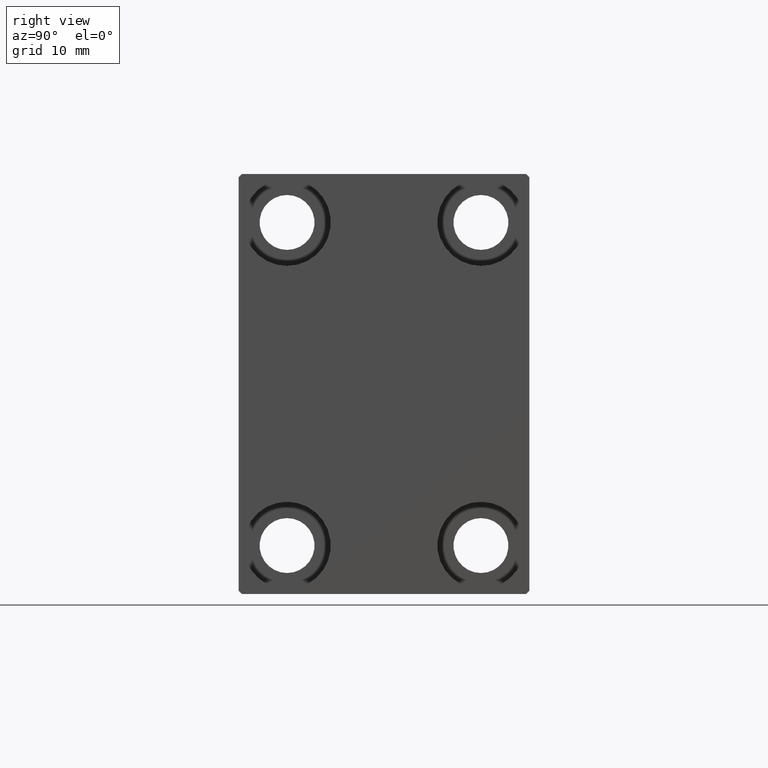
[diagram: clean part render]
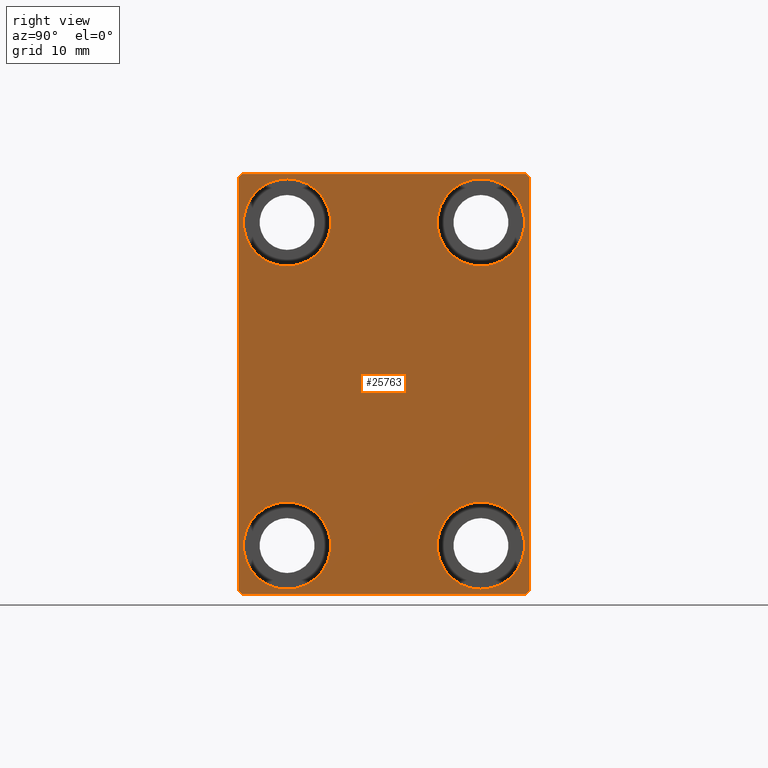
[diagram: same view with one face highlighted and labeled with its STEP entity id]
A machine part, right view. The second image highlights one B-rep face of the part: STEP entity #25763.
In plain terms, the highlighted planar face has unit normal (1, 0, 0).
Its self-contained STEP definition (entity closure, byte-faithful):
#10 = CARTESIAN_POINT ( 'NONE',  ( 70.00000000000000000, 14.99999999999999645, -25.00000000000000000 ) ) ;
#1116 = DIRECTION ( 'NONE',  ( 0.000000000000000000, 0.000000000000000000, 1.000000000000000000 ) ) ;
#3854 = DIRECTION ( 'NONE',  ( 0.000000000000000000, 0.000000000000000000, 1.000000000000000000 ) ) ;
#3939 = FACE_BOUND ( 'NONE', #4810, .T. ) ;
#3963 = VERTEX_POINT ( 'NONE', #31004 ) ;
#4145 = EDGE_CURVE ( 'NONE', #31006, #17615, #42579, .T. ) ;
#4368 = DIRECTION ( 'NONE',  ( 1.000000000000000000, 0.000000000000000000, 0.000000000000000000 ) ) ;
#4810 = EDGE_LOOP ( 'NONE', ( #28951, #38911 ) ) ;
#4815 = CARTESIAN_POINT ( 'NONE',  ( 70.00000000000000000, -27.25000000000000000, 27.25000000000000000 ) ) ;
#4991 = CARTESIAN_POINT ( 'NONE',  ( 70.00000000000000000, 21.99999999999999289, 32.50000000000000000 ) ) ;
#5344 = VERTEX_POINT ( 'NONE', #29062 ) ;
#5553 = AXIS2_PLACEMENT_3D ( 'NONE', #7184, #34135, #3854 ) ;
#5581 = EDGE_CURVE ( 'NONE', #42448, #3963, #19222, .T. ) ;
#6110 = VECTOR ( 'NONE', #37355, 1000.000000000000000 ) ;
#6381 = EDGE_CURVE ( 'NONE', #9506, #17007, #20667, .T. ) ;
#7184 = CARTESIAN_POINT ( 'NONE',  ( 70.00000000000000000, -14.99999999999999645, 25.00000000000000000 ) ) ;
#7694 = ORIENTED_EDGE ( 'NONE', *, *, #22331, .T. ) ;
#7828 = DIRECTION ( 'NONE',  ( -1.000000000000000000, -0.000000000000000000, -0.000000000000000000 ) ) ;
#8126 = FACE_BOUND ( 'NONE', #17191, .T. ) ;
#8135 = LINE ( 'NONE', #38634, #41635 ) ;
#8893 = VECTOR ( 'NONE', #24280, 1000.000000000000000 ) ;
#9506 = VERTEX_POINT ( 'NONE', #28981 ) ;
#9795 = CIRCLE ( 'NONE', #5553, 6.749999999999999112 ) ;
#10042 = AXIS2_PLACEMENT_3D ( 'NONE', #20517, #32419, #39060 ) ;
#10523 = CARTESIAN_POINT ( 'NONE',  ( 70.00000000000000000, -15.00000000000000355, -25.00000000000000000 ) ) ;
#10654 = EDGE_CURVE ( 'NONE', #17007, #31455, #41148, .T. ) ;
#10892 = VECTOR ( 'NONE', #42439, 1000.000000000000114 ) ;
#10962 = ORIENTED_EDGE ( 'NONE', *, *, #21436, .T. ) ;
#11528 = CARTESIAN_POINT ( 'NONE',  ( 70.00000000000000000, -14.99999999999999645, 25.00000000000000000 ) ) ;
#12049 = CARTESIAN_POINT ( 'NONE',  ( 70.00000000000000000, 15.00000000000000355, 31.75000000000000000 ) ) ;
#13881 = AXIS2_PLACEMENT_3D ( 'NONE', #10523, #31052, #37910 ) ;
#13949 = LINE ( 'NONE', #20122, #32277 ) ;
#14107 = DIRECTION ( 'NONE',  ( -0.000000000000000000, -0.7071067811865425767, 0.7071067811865525687 ) ) ;
#14714 = VERTEX_POINT ( 'NONE', #28537 ) ;
#15102 = CARTESIAN_POINT ( 'NONE',  ( 70.00000000000000000, 15.00000000000000355, 25.00000000000000000 ) ) ;
#16018 = EDGE_CURVE ( 'NONE', #31455, #5344, #41516, .T. ) ;
#16350 = ORIENTED_EDGE ( 'NONE', *, *, #19226, .T. ) ;
#16535 = ORIENTED_EDGE ( 'NONE', *, *, #29424, .T. ) ;
#16766 = AXIS2_PLACEMENT_3D ( 'NONE', #31114, #4368, #17840 ) ;
#17007 = VERTEX_POINT ( 'NONE', #37339 ) ;
#17047 = DIRECTION ( 'NONE',  ( -1.000000000000000000, -0.000000000000000000, -0.000000000000000000 ) ) ;
#17181 = CARTESIAN_POINT ( 'NONE',  ( 70.00000000000000000, -15.00000000000000355, -31.75000000000000000 ) ) ;
#17191 = EDGE_LOOP ( 'NONE', ( #40383, #22335 ) ) ;
#17414 = FACE_BOUND ( 'NONE', #18745, .T. ) ;
#17615 = VERTEX_POINT ( 'NONE', #34281 ) ;
#17840 = DIRECTION ( 'NONE',  ( 0.000000000000000000, 0.000000000000000000, -1.000000000000000000 ) ) ;
#18165 = VERTEX_POINT ( 'NONE', #4991 ) ;
#18529 = AXIS2_PLACEMENT_3D ( 'NONE', #15102, #7828, #25040 ) ;
#18745 = EDGE_LOOP ( 'NONE', ( #43130, #16535 ) ) ;
#19057 = CARTESIAN_POINT ( 'NONE',  ( 70.00000000000000000, -14.99999999999999645, 18.25000000000000355 ) ) ;
#19222 = CIRCLE ( 'NONE', #18529, 6.749999999999999112 ) ;
#19226 = EDGE_CURVE ( 'NONE', #21372, #14714, #31773, .T. ) ;
#20122 = CARTESIAN_POINT ( 'NONE',  ( 70.00000000000000000, -27.25000000000032330, -27.24999999999957012 ) ) ;
#20517 = CARTESIAN_POINT ( 'NONE',  ( 70.00000000000000000, 14.99999999999999645, -25.00000000000000000 ) ) ;
#20667 = LINE ( 'NONE', #21526, #36893 ) ;
#20791 = DIRECTION ( 'NONE',  ( 0.000000000000000000, 0.000000000000000000, 1.000000000000000000 ) ) ;
#20930 = CIRCLE ( 'NONE', #13881, 6.749999999999999112 ) ;
#20946 = FACE_OUTER_BOUND ( 'NONE', #34641, .T. ) ;
#20999 = VERTEX_POINT ( 'NONE', #19057 ) ;
#21010 = CARTESIAN_POINT ( 'NONE',  ( 70.00000000000000000, 27.25000000000032685, -27.24999999999957012 ) ) ;
#21372 = VERTEX_POINT ( 'NONE', #29173 ) ;
#21436 = EDGE_CURVE ( 'NONE', #18165, #21372, #36917, .T. ) ;
#21526 = CARTESIAN_POINT ( 'NONE',  ( 70.00000000000000000, -22.50000000000000711, -32.50000000000000711 ) ) ;
#21601 = CARTESIAN_POINT ( 'NONE',  ( 70.00000000000000000, -15.00000000000000355, -25.00000000000000000 ) ) ;
#21817 = DIRECTION ( 'NONE',  ( 0.000000000000000000, -0.7071067811865474617, -0.7071067811865474617 ) ) ;
#22265 = EDGE_CURVE ( 'NONE', #3963, #42448, #34343, .T. ) ;
#22331 = EDGE_CURVE ( 'NONE', #38051, #37077, #20930, .T. ) ;
#22335 = ORIENTED_EDGE ( 'NONE', *, *, #5581, .T. ) ;
#22548 = CIRCLE ( 'NONE', #37410, 6.749999999999999112 ) ;
#22669 = DIRECTION ( 'NONE',  ( -1.000000000000000000, -0.000000000000000000, -0.000000000000000000 ) ) ;
#22853 = ORIENTED_EDGE ( 'NONE', *, *, #25381, .T. ) ;
#23170 = EDGE_LOOP ( 'NONE', ( #7694, #25879 ) ) ;
#23558 = DIRECTION ( 'NONE',  ( 0.000000000000000000, 0.000000000000000000, 1.000000000000000000 ) ) ;
#23849 = EDGE_CURVE ( 'NONE', #17615, #31006, #39333, .T. ) ;
#23968 = AXIS2_PLACEMENT_3D ( 'NONE', #11528, #28737, #1116 ) ;
#24058 = LINE ( 'NONE', #34210, #41067 ) ;
#24276 = FACE_BOUND ( 'NONE', #23170, .T. ) ;
#24280 = DIRECTION ( 'NONE',  ( 0.000000000000000000, -1.067522139062650425E-16, 1.000000000000000000 ) ) ;
#24713 = DIRECTION ( 'NONE',  ( 0.000000000000000000, 0.000000000000000000, 1.000000000000000000 ) ) ;
#25040 = DIRECTION ( 'NONE',  ( 0.000000000000000000, 0.000000000000000000, 1.000000000000000000 ) ) ;
#25381 = EDGE_CURVE ( 'NONE', #39484, #9506, #13949, .T. ) ;
#25574 = DIRECTION ( 'NONE',  ( 0.000000000000000000, 0.000000000000000000, -1.000000000000000000 ) ) ;
#25763 = ADVANCED_FACE ( 'NONE', ( #3939, #17414, #8126, #24276, #20946 ), #31765, .T. ) ;
#25879 = ORIENTED_EDGE ( 'NONE', *, *, #32630, .T. ) ;
#27424 = DIRECTION ( 'NONE',  ( -0.000000000000000000, 0.7071067811865378028, -0.7071067811865573427 ) ) ;
#27750 = DIRECTION ( 'NONE',  ( 0.000000000000000000, 1.000000000000000000, 0.000000000000000000 ) ) ;
#28537 = CARTESIAN_POINT ( 'NONE',  ( 70.00000000000000000, -22.50000000000000711, 31.99999999999999289 ) ) ;
#28737 = DIRECTION ( 'NONE',  ( -1.000000000000000000, -0.000000000000000000, -0.000000000000000000 ) ) ;
#28951 = ORIENTED_EDGE ( 'NONE', *, *, #23849, .T. ) ;
#28981 = CARTESIAN_POINT ( 'NONE',  ( 70.00000000000000000, -22.00000000000002132, -32.50000000000000711 ) ) ;
#29062 = CARTESIAN_POINT ( 'NONE',  ( 70.00000000000000000, 22.49999999999999289, 31.99999999999999289 ) ) ;
#29173 = CARTESIAN_POINT ( 'NONE',  ( 70.00000000000000000, -21.99999999999999289, 32.49999999999999289 ) ) ;
#29424 = EDGE_CURVE ( 'NONE', #37402, #20999, #9795, .T. ) ;
#29444 = AXIS2_PLACEMENT_3D ( 'NONE', #10, #17047, #20791 ) ;
#30720 = ORIENTED_EDGE ( 'NONE', *, *, #6381, .T. ) ;
#30967 = CARTESIAN_POINT ( 'NONE',  ( 70.00000000000000000, -15.00000000000000355, -18.25000000000000355 ) ) ;
#30979 = CARTESIAN_POINT ( 'NONE',  ( 70.00000000000000000, 22.50000000000000000, -32.00000000000002132 ) ) ;
#31004 = CARTESIAN_POINT ( 'NONE',  ( 70.00000000000000000, 15.00000000000000355, 18.25000000000000355 ) ) ;
#31006 = VERTEX_POINT ( 'NONE', #41478 ) ;
#31052 = DIRECTION ( 'NONE',  ( -1.000000000000000000, -0.000000000000000000, -0.000000000000000000 ) ) ;
#31114 = CARTESIAN_POINT ( 'NONE',  ( 70.00000000000000000, 0.000000000000000000, 0.000000000000000000 ) ) ;
#31455 = VERTEX_POINT ( 'NONE', #30979 ) ;
#31561 = EDGE_CURVE ( 'NONE', #20999, #37402, #41598, .T. ) ;
#31765 = PLANE ( 'NONE',  #16766 ) ;
#31773 = LINE ( 'NONE', #4815, #32164 ) ;
#32164 = VECTOR ( 'NONE', #21817, 1000.000000000000114 ) ;
#32224 = AXIS2_PLACEMENT_3D ( 'NONE', #43238, #22669, #23558 ) ;
#32277 = VECTOR ( 'NONE', #27424, 1000.000000000000000 ) ;
#32419 = DIRECTION ( 'NONE',  ( -1.000000000000000000, -0.000000000000000000, -0.000000000000000000 ) ) ;
#32563 = EDGE_CURVE ( 'NONE', #14714, #39484, #8135, .T. ) ;
#32630 = EDGE_CURVE ( 'NONE', #37077, #38051, #22548, .T. ) ;
#33367 = ORIENTED_EDGE ( 'NONE', *, *, #32563, .T. ) ;
#34025 = CARTESIAN_POINT ( 'NONE',  ( 70.00000000000000000, 22.49999999999999289, 32.50000000000000000 ) ) ;
#34135 = DIRECTION ( 'NONE',  ( -1.000000000000000000, -0.000000000000000000, -0.000000000000000000 ) ) ;
#34210 = CARTESIAN_POINT ( 'NONE',  ( 70.00000000000000000, 27.25000000000014921, 27.24999999999976907 ) ) ;
#34281 = CARTESIAN_POINT ( 'NONE',  ( 70.00000000000000000, 14.99999999999999645, -31.75000000000000000 ) ) ;
#34343 = CIRCLE ( 'NONE', #32224, 6.749999999999999112 ) ;
#34641 = EDGE_LOOP ( 'NONE', ( #10962, #16350, #33367, #22853, #30720, #39315, #38093, #35012 ) ) ;
#35012 = ORIENTED_EDGE ( 'NONE', *, *, #41263, .T. ) ;
#35171 = CARTESIAN_POINT ( 'NONE',  ( 70.00000000000000000, -22.50000000000000711, -32.00000000000000711 ) ) ;
#36893 = VECTOR ( 'NONE', #27750, 1000.000000000000000 ) ;
#36917 = LINE ( 'NONE', #34025, #6110 ) ;
#37077 = VERTEX_POINT ( 'NONE', #30967 ) ;
#37339 = CARTESIAN_POINT ( 'NONE',  ( 70.00000000000000000, 22.00000000000001421, -32.50000000000000711 ) ) ;
#37355 = DIRECTION ( 'NONE',  ( 0.000000000000000000, -1.000000000000000000, -1.541976423090495387E-16 ) ) ;
#37402 = VERTEX_POINT ( 'NONE', #39503 ) ;
#37410 = AXIS2_PLACEMENT_3D ( 'NONE', #21601, #42393, #24713 ) ;
#37910 = DIRECTION ( 'NONE',  ( 0.000000000000000000, 0.000000000000000000, 1.000000000000000000 ) ) ;
#38051 = VERTEX_POINT ( 'NONE', #17181 ) ;
#38093 = ORIENTED_EDGE ( 'NONE', *, *, #16018, .T. ) ;
#38634 = CARTESIAN_POINT ( 'NONE',  ( 70.00000000000000000, -22.50000000000000711, 32.49999999999999289 ) ) ;
#38911 = ORIENTED_EDGE ( 'NONE', *, *, #4145, .T. ) ;
#39060 = DIRECTION ( 'NONE',  ( 0.000000000000000000, 0.000000000000000000, 1.000000000000000000 ) ) ;
#39315 = ORIENTED_EDGE ( 'NONE', *, *, #10654, .T. ) ;
#39333 = CIRCLE ( 'NONE', #29444, 6.749999999999999112 ) ;
#39484 = VERTEX_POINT ( 'NONE', #35171 ) ;
#39503 = CARTESIAN_POINT ( 'NONE',  ( 70.00000000000000000, -14.99999999999999645, 31.75000000000000000 ) ) ;
#40383 = ORIENTED_EDGE ( 'NONE', *, *, #22265, .T. ) ;
#41067 = VECTOR ( 'NONE', #14107, 999.9999999999998863 ) ;
#41087 = CARTESIAN_POINT ( 'NONE',  ( 70.00000000000000000, 22.50000000000000000, -32.50000000000000711 ) ) ;
#41148 = LINE ( 'NONE', #21010, #10892 ) ;
#41263 = EDGE_CURVE ( 'NONE', #5344, #18165, #24058, .T. ) ;
#41478 = CARTESIAN_POINT ( 'NONE',  ( 70.00000000000000000, 14.99999999999999645, -18.25000000000000355 ) ) ;
#41516 = LINE ( 'NONE', #41087, #8893 ) ;
#41598 = CIRCLE ( 'NONE', #23968, 6.749999999999999112 ) ;
#41635 = VECTOR ( 'NONE', #25574, 1000.000000000000000 ) ;
#42393 = DIRECTION ( 'NONE',  ( -1.000000000000000000, -0.000000000000000000, -0.000000000000000000 ) ) ;
#42439 = DIRECTION ( 'NONE',  ( -0.000000000000000000, 0.7071067811865376918, 0.7071067811865573427 ) ) ;
#42448 = VERTEX_POINT ( 'NONE', #12049 ) ;
#42579 = CIRCLE ( 'NONE', #10042, 6.749999999999999112 ) ;
#43130 = ORIENTED_EDGE ( 'NONE', *, *, #31561, .T. ) ;
#43238 = CARTESIAN_POINT ( 'NONE',  ( 70.00000000000000000, 15.00000000000000355, 25.00000000000000000 ) ) ;